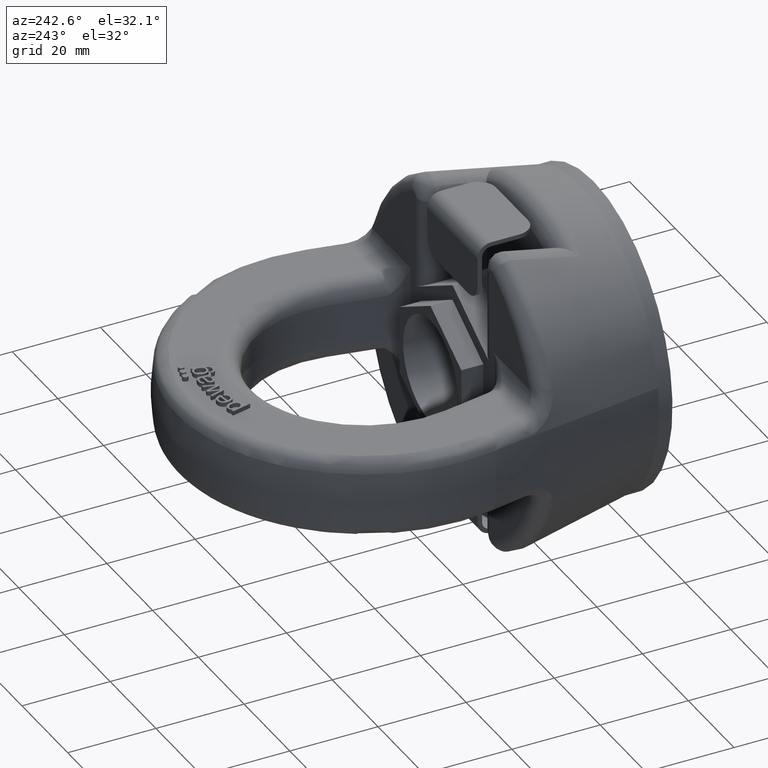
[diagram: clean part render]
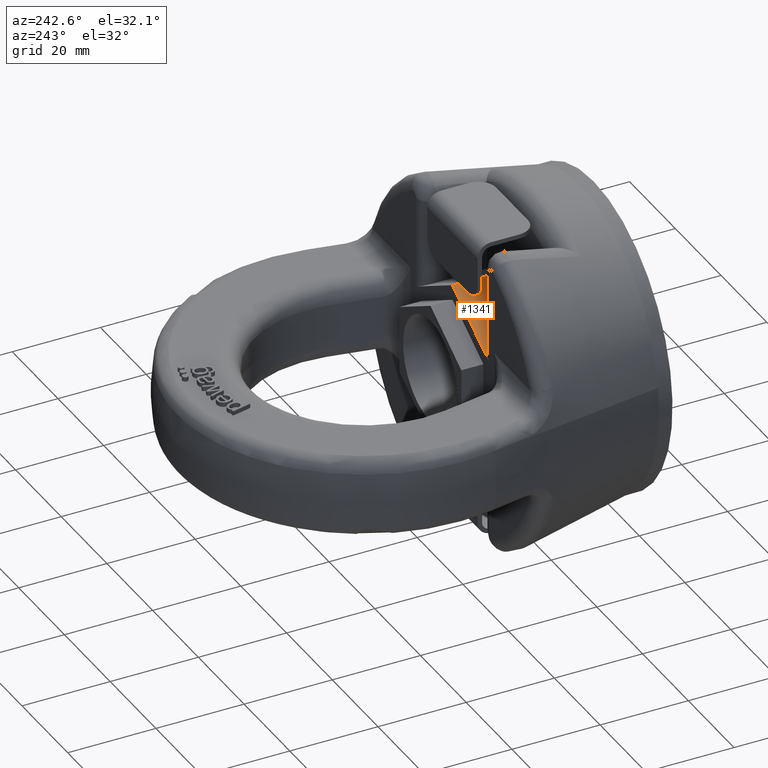
[diagram: same view with one face highlighted and labeled with its STEP entity id]
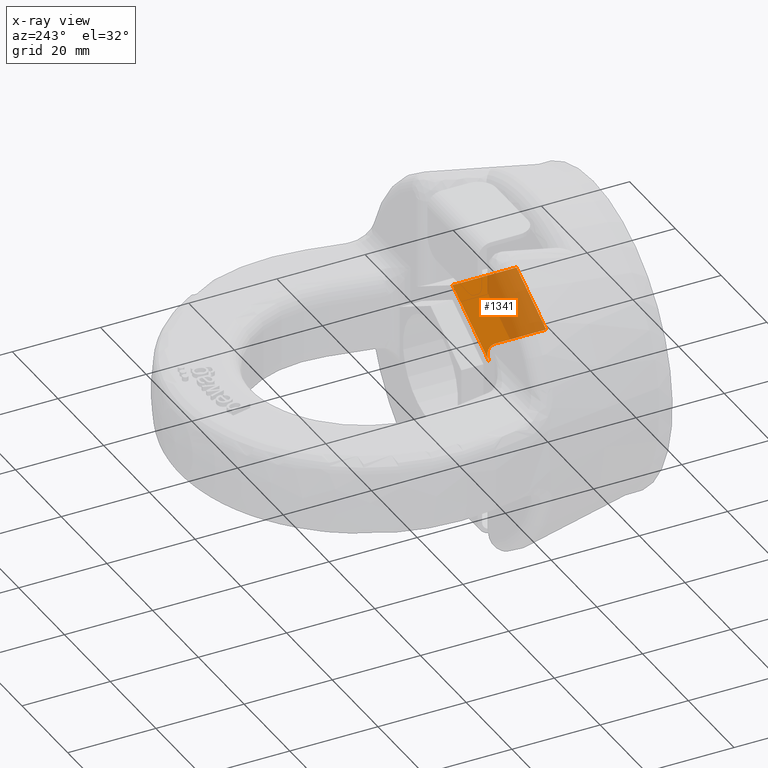
[diagram: x-ray of the same camera — body ghosted, the highlighted face saturated]
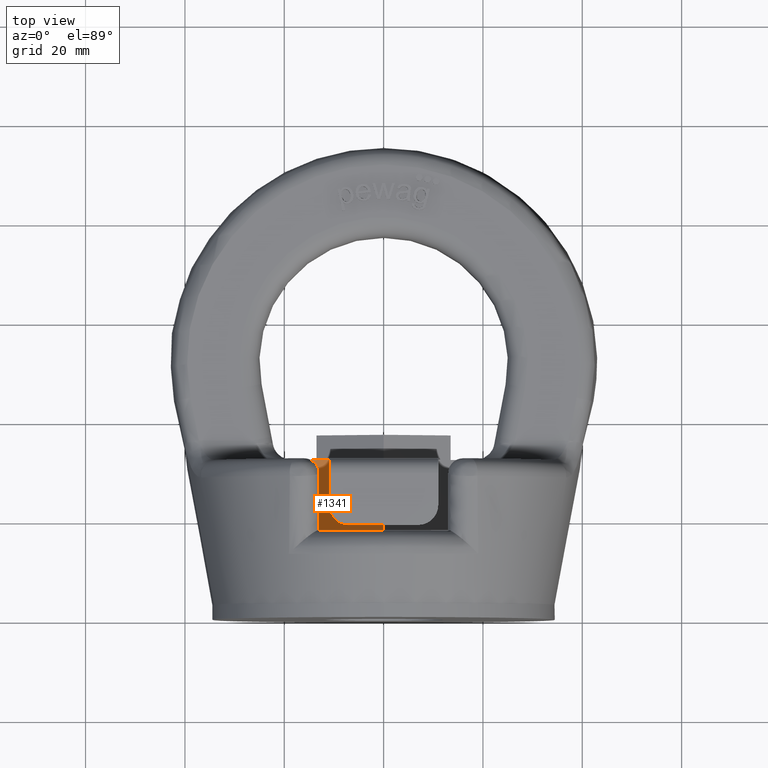
[diagram: same view with one face highlighted and labeled with its STEP entity id]
A machine part, auxiliary view. The second image highlights one B-rep face of the part: STEP entity #1341.
The next image is the same camera in x-ray: the body ghosted, the highlighted face saturated — about 55% of this face is hidden behind the body in this view.
A second angle (top view) of the same face is appended — the face is thin or edge-on in the first view.
In plain terms, the highlighted planar face has unit normal (-0.5, 0, 0.866).
Its self-contained STEP definition (entity closure, byte-faithful):
#1053=ELLIPSE('',#5150,3.46410161513775,3.);
#1117=FACE_OUTER_BOUND('',#1859,.T.);
#1341=ADVANCED_FACE('',(#1117),#1577,.T.);
#1577=PLANE('',#5151);
#1859=EDGE_LOOP('',(#2869,#2870,#2871,#2872,#2873));
#2131=LINE('',#6530,#2401);
#2136=LINE('',#6561,#2406);
#2154=LINE('',#6801,#2424);
#2178=LINE('',#6883,#2448);
#2401=VECTOR('',#5416,1.);
#2406=VECTOR('',#5425,1.);
#2424=VECTOR('',#5491,1.);
#2448=VECTOR('',#5545,1.);
#2869=ORIENTED_EDGE('',*,*,#4370,.F.);
#2870=ORIENTED_EDGE('',*,*,#4403,.T.);
#2871=ORIENTED_EDGE('',*,*,#4309,.T.);
#2872=ORIENTED_EDGE('',*,*,#4318,.T.);
#2873=ORIENTED_EDGE('',*,*,#4401,.T.);
#3925=VERTEX_POINT('',#6531);
#3926=VERTEX_POINT('',#6532);
#3933=VERTEX_POINT('',#6560);
#3981=VERTEX_POINT('',#6800);
#3982=VERTEX_POINT('',#6802);
#4309=EDGE_CURVE('',#3925,#3926,#2131,.T.);
#4318=EDGE_CURVE('',#3926,#3933,#2136,.T.);
#4370=EDGE_CURVE('',#3981,#3982,#2154,.T.);
#4401=EDGE_CURVE('',#3933,#3982,#2178,.T.);
#4403=EDGE_CURVE('',#3981,#3925,#1053,.T.);
#5150=AXIS2_PLACEMENT_3D('',#6886,#5550,#5551);
#5151=AXIS2_PLACEMENT_3D('',#6887,#5552,#5553);
#5416=DIRECTION('',(0.,-1.,0.));
#5425=DIRECTION('',(0.866025403784439,1.1556266144132E-16,0.499999999999999));
#5491=DIRECTION('',(0.866025403784439,0.,0.499999999999999));
#5545=DIRECTION('',(0.,1.,0.));
#5550=DIRECTION('',(0.499999999999999,0.,-0.866025403784439));
#5551=DIRECTION('',(0.866025403784439,0.,0.499999999999999));
#5552=DIRECTION('',(-0.499999999999999,0.,0.866025403784439));
#5553=DIRECTION('',(0.866025403784439,0.,0.499999999999999));
#6530=CARTESIAN_POINT('',(-13.,32.,11.5470053837925));
#6531=CARTESIAN_POINT('',(-13.,29.,11.5470053837925));
#6532=CARTESIAN_POINT('',(-13.,17.5,11.5470053837925));
#6560=CARTESIAN_POINT('',(-2.16840434497101E-15,17.5,19.0525588832576));
#6561=CARTESIAN_POINT('',(2.48150079950197,17.5,20.4852540378444));
#6800=CARTESIAN_POINT('',(-16.,32.,9.81495457622364));
#6801=CARTESIAN_POINT('',(-8.24999999999998,32.,14.2894191624432));
#6802=CARTESIAN_POINT('',(-2.02884724223737E-15,32.,19.0525588832576));
#6883=CARTESIAN_POINT('',(-3.46944695195361E-15,-0.400000000000018,19.0525588832576));
#6886=CARTESIAN_POINT('',(-16.,29.,9.81495457622363));
#6887=CARTESIAN_POINT('',(-15.,-0.400000000000018,10.3923048454133));